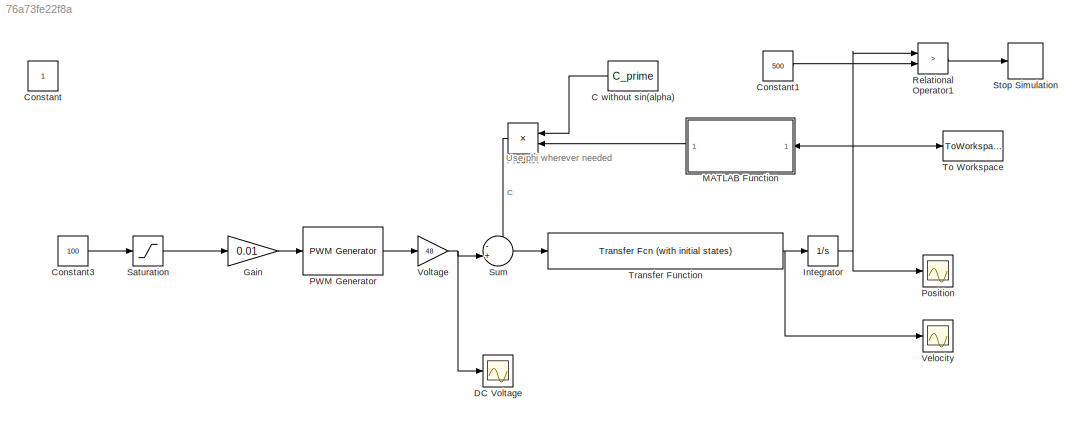
MODEL slx_76a73fe22f8a
KIND model
CONFIG AbsTol = auto
CONFIG EnableMultiTasking = off
CONFIG FixedStep = 0.001
CONFIG MaxStep = auto
CONFIG MinStep = auto
CONFIG RelTol = 1e-3
CONFIG SampleTimeConstraint = Unconstrained
CONFIG SolverName = ode4
CONFIG StartTime = 0.0
CONFIG StopTime = 20
WORKSPACE source: mxarray member
WORKSPACE A: Simulink.Parameter (value not decoded)
WORKSPACE B: Simulink.Parameter (value not decoded)
WORKSPACE C_prime: Simulink.Parameter (value not decoded)
WORKSPACE D: Simulink.Parameter (value not decoded)
WORKSPACE Iw: Simulink.Parameter (value not decoded)
WORKSPACE Kt = 0.0758
WORKSPACE Kv = 0.076
WORKSPACE mb = 0.4
WORKSPACE mc = 0.2
WORKSPACE mm = 0.34
WORKSPACE mt: Simulink.Parameter (value not decoded)
WORKSPACE mw: Simulink.Parameter (value not decoded)
WORKSPACE r = 0.39
BLOCK [Constant] C without sin(alpha)
  Value = C_prime
BLOCK [Constant] Constant
  IOType = siggen
BLOCK [Constant] Constant1
  Value = 500
BLOCK [Constant] Constant3
  Value = 100
BLOCK [Scope] DC Voltage
  Floating = off
  NumInputPorts = 1
  Ports = [1]
  ScopeSpecificationString = Simulink.scopes.TimeScopeBlockCfg('CurrentConfiguration', extmgr.ConfigurationSet(extmgr.Configuration('Core','General UI',true),extmgr.Configuration('Core','Source UI',true),extmgr.Configuration('Sources','WiredSimulink',true),extmgr.Configuration('Visuals','Time Domain',true,'SerializedDisplays',{struct('MinYLimReal','44.70959','MaxYLimReal','49.12144','YLabelReal','','MinYLimMag','44.70959','Ma...<+1472ch>
BLOCK [Gain] Gain
  Gain = 0.01
BLOCK [Integrator] Integrator
  Ports = [1, 1]
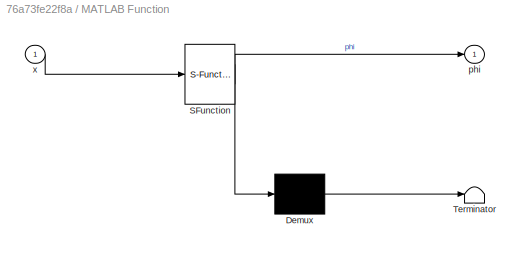
BLOCK [SubSystem] MATLAB Function
  ErrorFcn = Stateflow.Translate.translate
  PermitHierarchicalResolution = ExplicitOnly
  Ports = [1, 1]
  RequestExecContextInheritance = off
  SFBlockType = MATLAB Function
  TreatAsAtomicUnit = on
BLOCK [Demux] MATLAB Function/ Demux 
  Outputs = 1
  Ports = [1, 1]
BLOCK [S-Function] MATLAB Function/ SFunction 
  EnableBusSupport = on
  FunctionName = sf_sfun
  PortCounts = [1 2]
  Ports = [1, 2]
  SFcnIsStateOwnerBlock = off
  SFunctionDeploymentMode = off
  Tag = Stateflow S-Function 2
BLOCK [Terminator] MATLAB Function/ Terminator 
BLOCK [Outport] MATLAB Function/phi
  VectorParamsAs1DForOutWhenUnconnected = off
BLOCK [Inport] MATLAB Function/x
BLOCK [Reference] PWM Generator  REF=eePwmGenerator/PWM Generator
  Ports = [1, 1]
  SourceBlock = eePwmGenerator/PWM Generator
  SourceProductBaseCode = PS
  SourceType = PWM Generator
BLOCK [Scope] Position
  Floating = off
  NumInputPorts = 1
  Ports = [1]
  ScopeSpecificationString = Simulink.scopes.TimeScopeBlockCfg('CurrentConfiguration', extmgr.ConfigurationSet(extmgr.Configuration('Core','General UI',true),extmgr.Configuration('Core','Source UI',true),extmgr.Configuration('Sources','WiredSimulink',true,'DataLoggingVariableName','ScopeData1'),extmgr.Configuration('Visuals','Time Domain',true,'SerializedDisplays',{struct('MinYLimReal','-62.50151','MaxYLimReal','562.51355','Y...<+1461ch>
BLOCK [Product] Product
  NameLocation = top
  Ports = [2, 1]
BLOCK [RelationalOperator] Relational Operator1
  InputSameDT = off
  Operator = >
  OutDataTypeStr = boolean
  Ports = [2, 1]
  RndMeth = Simplest
BLOCK [Saturate] Saturation
  LowerLimit = 0
  UpperLimit = 100
BLOCK [Stop] Stop Simulation
BLOCK [Sum] Sum
  Inputs = -+|
  Ports = [2, 1]
BLOCK [ToWorkspace] To Workspace
  FixptAsFi = on
  MaxDataPoints = inf
  Ports = [1]
  SampleTime = -1
  VariableName = position
BLOCK [Reference] Transfer Function  REF=simulink_extras/Additional
Linear/Transfer Fcn
(with initial states)
  Ports = [1, 1]
  SourceBlock = simulink_extras/Additional\nLinear/Transfer Fcn\n(with initial states)
  SourceProductBaseCode = SL
  SourceType = Transfer Function with Initial States
BLOCK [Scope] Velocity
  Floating = off
  NumInputPorts = 1
  Ports = [1]
  ScopeSpecificationString = Simulink.scopes.TimeScopeBlockCfg('CurrentConfiguration', extmgr.ConfigurationSet(extmgr.Configuration('Core','General UI',true),extmgr.Configuration('Core','Source UI',true),extmgr.Configuration('Sources','WiredSimulink',true,'DataLoggingVariableName','ScopeData2'),extmgr.Configuration('Visuals','Time Domain',true,'SerializedDisplays',{struct('MinYLimReal','-4.86688','MaxYLimReal','43.80193','YLa...<+1465ch>
BLOCK [Gain] Voltage
  Gain = 48
ANNOTATION (root): Use phi wherever needed
LINE C without sin(alpha):1 -> Product:1
LINE Constant1:1 -> Relational Operator1:2
LINE Constant3:1 -> Saturation:1
LINE Gain:1 -> PWM Generator:1
NET Integrator:1 -> MATLAB Function:1, Position:1, Relational Operator1:1, To Workspace:1
LINE MATLAB Function:1 -> Product:2
LINE PWM Generator:1 -> Voltage:1
LINE Product:1 -> Sum:1
LINE Relational Operator1:1 -> Stop Simulation:1
LINE Saturation:1 -> Gain:1
LINE Sum:1 -> Transfer Function:1
NET Transfer Function:1 -> Integrator:1, Velocity:1
NET Voltage:1 -> DC Voltage:1, Sum:2
note: NET lines group one-source signal fan-out (src -> all destinations, sorted); 1:1 wires keep LINE
CHART MATLAB Function states=1 transitions=1
  STATE_LABEL 'eML_blk_kernel()'
  STATE_LABEL 'SCRIPT:\nfunction phi = getInclination(x)\n\nif x < 250\n    phi = 0;\nelse\n    if x < 350\n        phi = sin(pi / 6);\n    else\n        phi = sin(pi / 18);\n    end\nend\n'
CHART  states=0 transitions=0
